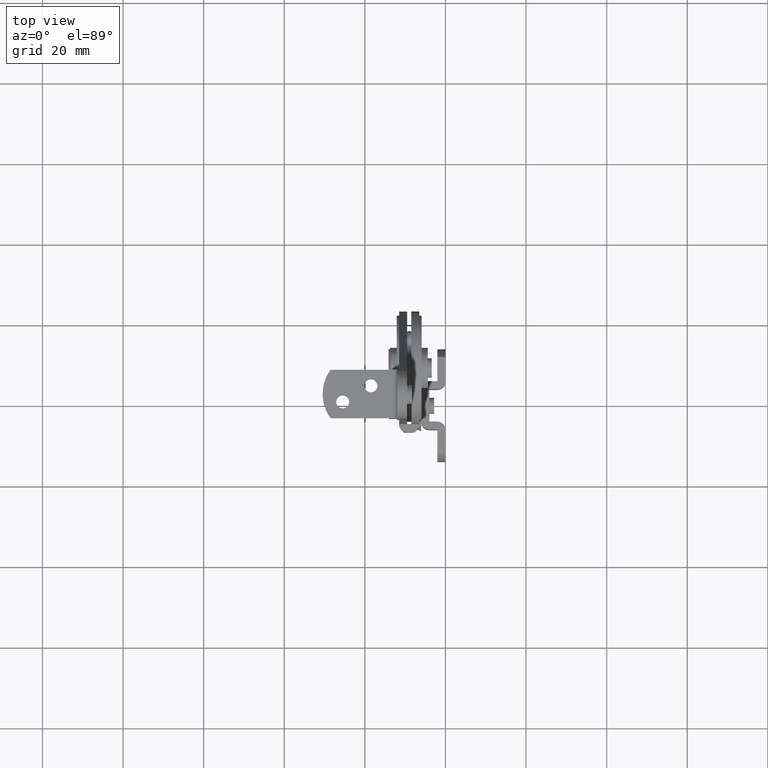
[diagram: clean part render]
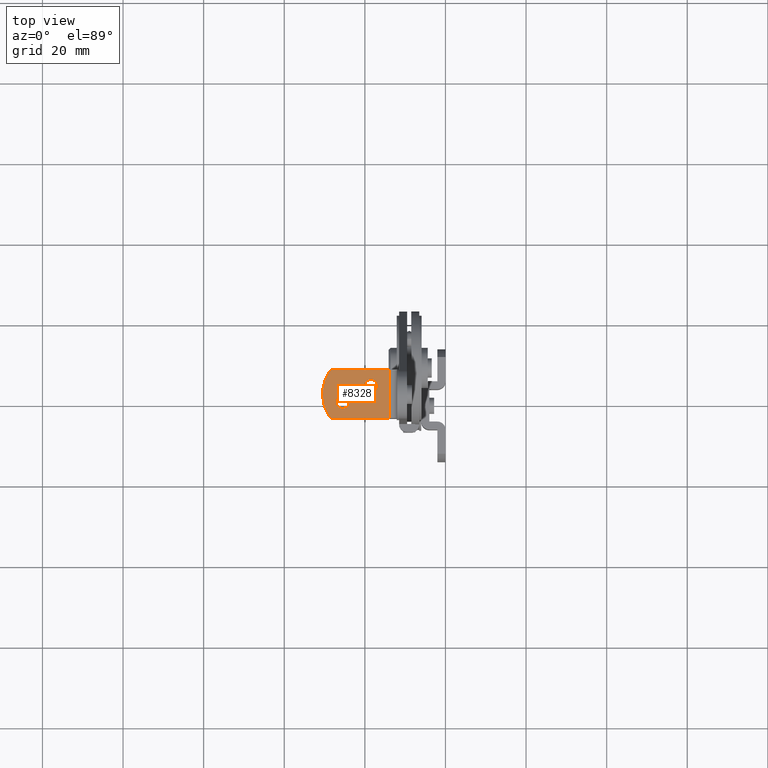
[diagram: same view with one face highlighted and labeled with its STEP entity id]
A machine part, top view. The second image highlights one B-rep face of the part: STEP entity #8328.
In plain terms, the highlighted face is a freeform B-spline surface patch.
Its self-contained STEP definition (entity closure, byte-faithful):
#7684=CARTESIAN_POINT('',(-18.402322334317180,0.402984316701834,88.999984000000083));
#7685=VERTEX_POINT('',#7684);
#7691=CARTESIAN_POINT('',(-16.899999999999999,2.0,88.999984000000097));
#7692=VERTEX_POINT('',#7691);
#7693=CARTESIAN_POINT('',(-16.899999999999999,2.0,88.999984000000097));
#7694=CARTESIAN_POINT('',(-16.899999999999999,0.494870296847094,88.999984000000083));
#7695=CARTESIAN_POINT('',(-18.402322334317176,0.402984316701834,88.999984000000083));
#7703=(BOUNDED_CURVE()B_SPLINE_CURVE(2,(#7693,#7694,#7695),.UNSPECIFIED.,.F.,.U.)B_SPLINE_CURVE_WITH_KNOTS((3,3),(0.500000000000000,0.739332961796144),.UNSPECIFIED.)CURVE()GEOMETRIC_REPRESENTATION_ITEM()RATIONAL_B_SPLINE_CURVE((1.0,0.719603993805482,0.976072040717715))REPRESENTATION_ITEM(''));
#7704=EDGE_CURVE('',#7692,#7685,#7703,.T.);
#7706=CARTESIAN_POINT('',(-18.688854776285950,3.588815248085043,88.999984000000097));
#7707=VERTEX_POINT('',#7706);
#7708=CARTESIAN_POINT('',(-18.688854776285950,3.588815248085043,88.999984000000097));
#7709=CARTESIAN_POINT('',(-18.594758591576038,3.599999999999999,88.999984000000097));
#7710=CARTESIAN_POINT('',(-18.500000000000000,3.600000000000000,88.999984000000097));
#7711=CARTESIAN_POINT('',(-16.899999999999991,3.600000000000000,88.999984000000083));
#7712=CARTESIAN_POINT('',(-16.899999999999999,2.0,88.999984000000097));
#7720=(BOUNDED_CURVE()B_SPLINE_CURVE(2,(#7708,#7709,#7710,#7711,#7712),.UNSPECIFIED.,.F.,.U.)B_SPLINE_CURVE_WITH_KNOTS((3,2,3),(0.229562473487649,0.250000000000000,0.500000000000000),.UNSPECIFIED.)CURVE()GEOMETRIC_REPRESENTATION_ITEM()RATIONAL_B_SPLINE_CURVE((0.956026754133013,0.976055948300849,1.0,0.707106781186548,1.0))REPRESENTATION_ITEM(''));
#7721=EDGE_CURVE('',#7707,#7692,#7720,.T.);
#7751=CARTESIAN_POINT('',(-20.100000000000001,2.0,88.999984000000097));
#7752=VERTEX_POINT('',#7751);
#7753=CARTESIAN_POINT('',(-20.100000000000001,2.0,88.999984000000097));
#7754=CARTESIAN_POINT('',(-20.099999999999998,3.421079241285128,88.999984000000083));
#7755=CARTESIAN_POINT('',(-18.688854776285950,3.588815248085043,88.999984000000097));
#7763=(BOUNDED_CURVE()B_SPLINE_CURVE(2,(#7753,#7754,#7755),.UNSPECIFIED.,.F.,.U.)B_SPLINE_CURVE_WITH_KNOTS((3,3),(0.0,0.229562473487648),.UNSPECIFIED.)CURVE()GEOMETRIC_REPRESENTATION_ITEM()RATIONAL_B_SPLINE_CURVE((1.0,0.731050832885699,0.956026754133013))REPRESENTATION_ITEM(''));
#7764=EDGE_CURVE('',#7752,#7707,#7763,.T.);
#7766=CARTESIAN_POINT('',(-18.402322334317176,0.402984316701835,88.999984000000083));
#7767=CARTESIAN_POINT('',(-18.451115576653304,0.400000000000000,88.999984000000097));
#7768=CARTESIAN_POINT('',(-18.500000000000000,0.400000000000000,88.999984000000097));
#7769=CARTESIAN_POINT('',(-20.100000000000005,0.400000000000000,88.999984000000083));
#7770=CARTESIAN_POINT('',(-20.100000000000001,2.0,88.999984000000097));
#7778=(BOUNDED_CURVE()B_SPLINE_CURVE(2,(#7766,#7767,#7768,#7769,#7770),.UNSPECIFIED.,.F.,.U.)B_SPLINE_CURVE_WITH_KNOTS((3,2,3),(0.739332961796145,0.750000000000000,1.0),.UNSPECIFIED.)CURVE()GEOMETRIC_REPRESENTATION_ITEM()RATIONAL_B_SPLINE_CURVE((0.976072040717717,0.987502787381067,1.0,0.707106781186548,1.0))REPRESENTATION_ITEM(''));
#7779=EDGE_CURVE('',#7685,#7752,#7778,.T.);
#8012=CARTESIAN_POINT('',(-25.402322334317180,-3.597015683298166,88.999984000000097));
#8013=VERTEX_POINT('',#8012);
#8019=CARTESIAN_POINT('',(-23.899999999999999,-2.0,88.999984000000097));
#8020=VERTEX_POINT('',#8019);
#8021=CARTESIAN_POINT('',(-23.899999999999999,-2.0,88.999984000000097));
#8022=CARTESIAN_POINT('',(-23.899999999999995,-3.505129703152907,88.999984000000083));
#8023=CARTESIAN_POINT('',(-25.402322334317176,-3.597015683298166,88.999984000000097));
#8031=(BOUNDED_CURVE()B_SPLINE_CURVE(2,(#8021,#8022,#8023),.UNSPECIFIED.,.F.,.U.)B_SPLINE_CURVE_WITH_KNOTS((3,3),(0.500000000000000,0.739332961796144),.UNSPECIFIED.)CURVE()GEOMETRIC_REPRESENTATION_ITEM()RATIONAL_B_SPLINE_CURVE((1.0,0.719603993805482,0.976072040717715))REPRESENTATION_ITEM(''));
#8032=EDGE_CURVE('',#8020,#8013,#8031,.T.);
#8034=CARTESIAN_POINT('',(-25.688854776285950,-0.411184751914957,88.999984000000097));
#8035=VERTEX_POINT('',#8034);
#8036=CARTESIAN_POINT('',(-25.688854776285943,-0.411184751914957,88.999984000000097));
#8037=CARTESIAN_POINT('',(-25.594758591576038,-0.400000000000000,88.999984000000097));
#8038=CARTESIAN_POINT('',(-25.500000000000000,-0.400000000000000,88.999984000000097));
#8039=CARTESIAN_POINT('',(-23.899999999999991,-0.400000000000000,88.999984000000083));
#8040=CARTESIAN_POINT('',(-23.899999999999999,-2.0,88.999984000000097));
#8048=(BOUNDED_CURVE()B_SPLINE_CURVE(2,(#8036,#8037,#8038,#8039,#8040),.UNSPECIFIED.,.F.,.U.)B_SPLINE_CURVE_WITH_KNOTS((3,2,3),(0.229562473487649,0.250000000000000,0.500000000000000),.UNSPECIFIED.)CURVE()GEOMETRIC_REPRESENTATION_ITEM()RATIONAL_B_SPLINE_CURVE((0.956026754133014,0.976055948300849,1.0,0.707106781186548,1.0))REPRESENTATION_ITEM(''));
#8049=EDGE_CURVE('',#8035,#8020,#8048,.T.);
#8079=CARTESIAN_POINT('',(-27.100000000000001,-2.0,88.999984000000097));
#8080=VERTEX_POINT('',#8079);
#8081=CARTESIAN_POINT('',(-27.100000000000001,-2.0,88.999984000000097));
#8082=CARTESIAN_POINT('',(-27.099999999999994,-0.578920758714870,88.999984000000069));
#8083=CARTESIAN_POINT('',(-25.688854776285943,-0.411184751914957,88.999984000000097));
#8091=(BOUNDED_CURVE()B_SPLINE_CURVE(2,(#8081,#8082,#8083),.UNSPECIFIED.,.F.,.U.)B_SPLINE_CURVE_WITH_KNOTS((3,3),(0.0,0.229562473487649),.UNSPECIFIED.)CURVE()GEOMETRIC_REPRESENTATION_ITEM()RATIONAL_B_SPLINE_CURVE((1.0,0.731050832885699,0.956026754133014))REPRESENTATION_ITEM(''));
#8092=EDGE_CURVE('',#8080,#8035,#8091,.T.);
#8094=CARTESIAN_POINT('',(-25.402322334317176,-3.597015683298166,88.999984000000097));
#8095=CARTESIAN_POINT('',(-25.451115576653304,-3.600000000000000,88.999984000000097));
#8096=CARTESIAN_POINT('',(-25.500000000000000,-3.600000000000000,88.999984000000097));
#8097=CARTESIAN_POINT('',(-27.100000000000001,-3.600000000000000,88.999984000000083));
#8098=CARTESIAN_POINT('',(-27.100000000000001,-2.0,88.999984000000097));
#8106=(BOUNDED_CURVE()B_SPLINE_CURVE(2,(#8094,#8095,#8096,#8097,#8098),.UNSPECIFIED.,.F.,.U.)B_SPLINE_CURVE_WITH_KNOTS((3,2,3),(0.739332961796144,0.750000000000000,1.0),.UNSPECIFIED.)CURVE()GEOMETRIC_REPRESENTATION_ITEM()RATIONAL_B_SPLINE_CURVE((0.976072040717716,0.987502787381067,1.0,0.707106781186548,1.0))REPRESENTATION_ITEM(''));
#8107=EDGE_CURVE('',#8013,#8080,#8106,.T.);
#8189=CARTESIAN_POINT('',(-28.500000000000000,-6.0,88.999984000000097));
#8190=VERTEX_POINT('',#8189);
#8191=CARTESIAN_POINT('',(-28.500000000000000,6.0,88.999984000000097));
#8192=VERTEX_POINT('',#8191);
#8193=CARTESIAN_POINT('',(-28.500000000000000,-6.0,88.999984000000097));
#8194=CARTESIAN_POINT('',(-33.0,-8.673617E-016,88.999984000000083));
#8195=CARTESIAN_POINT('',(-28.500000000000000,5.999999999999997,88.999984000000097));
#8203=(BOUNDED_CURVE()B_SPLINE_CURVE(2,(#8193,#8194,#8195),.UNSPECIFIED.,.F.,.U.)CURVE()GEOMETRIC_REPRESENTATION_ITEM()QUASI_UNIFORM_CURVE()RATIONAL_B_SPLINE_CURVE((1.0,0.800000000000000,1.0))REPRESENTATION_ITEM(''));
#8204=EDGE_CURVE('',#8190,#8192,#8203,.T.);
#8252=CARTESIAN_POINT('',(-14.000000211915101,-6.0,88.999984000000097));
#8253=VERTEX_POINT('',#8252);
#8274=CARTESIAN_POINT('',(-14.000000211915101,6.0,88.999984000000097));
#8275=VERTEX_POINT('',#8274);
#8289=CARTESIAN_POINT('',(-14.000000211915101,6.0,88.999984000000097));
#8290=CARTESIAN_POINT('',(-14.000000211915101,-6.0,88.999984000000097));
#8291=QUASI_UNIFORM_CURVE('',1,(#8289,#8290),.UNSPECIFIED.,.F.,.U.);
#8292=EDGE_CURVE('',#8275,#8253,#8291,.T.);
#8297=CARTESIAN_POINT('',(-31.324174957434462,-6.599399976741672,88.999984000000097));
#8298=CARTESIAN_POINT('',(-13.175824811915991,-6.599399976741672,88.999984000000097));
#8299=CARTESIAN_POINT('',(-31.324174957434462,6.599400298606754,88.999984000000097));
#8300=CARTESIAN_POINT('',(-13.175824811915991,6.599400298606754,88.999984000000097));
#8301=B_SPLINE_SURFACE_WITH_KNOTS('',1,1,((#8297,#8299),(#8298,#8300)),.UNSPECIFIED.,.F.,.F.,.U.,(2,2),(2,2),(0.0,18.148350145518471),(0.0,13.198800275348431),.UNSPECIFIED.);
#8302=CARTESIAN_POINT('',(-14.000000211915101,6.0,88.999984000000097));
#8303=CARTESIAN_POINT('',(-28.500000000000000,6.0,88.999984000000097));
#8304=QUASI_UNIFORM_CURVE('',1,(#8302,#8303),.UNSPECIFIED.,.F.,.U.);
#8305=EDGE_CURVE('',#8275,#8192,#8304,.T.);
#8306=ORIENTED_EDGE('',*,*,#8305,.T.);
#8307=ORIENTED_EDGE('',*,*,#8204,.F.);
#8308=CARTESIAN_POINT('',(-14.000000211915101,-6.0,88.999984000000097));
#8309=CARTESIAN_POINT('',(-28.500000000000000,-6.0,88.999984000000097));
#8310=QUASI_UNIFORM_CURVE('',1,(#8308,#8309),.UNSPECIFIED.,.F.,.U.);
#8311=EDGE_CURVE('',#8253,#8190,#8310,.T.);
#8312=ORIENTED_EDGE('',*,*,#8311,.F.);
#8313=ORIENTED_EDGE('',*,*,#8292,.F.);
#8314=EDGE_LOOP('',(#8306,#8307,#8312,#8313));
#8315=FACE_OUTER_BOUND('',#8314,.T.);
#8316=ORIENTED_EDGE('',*,*,#8032,.T.);
#8317=ORIENTED_EDGE('',*,*,#8107,.T.);
#8318=ORIENTED_EDGE('',*,*,#8092,.T.);
#8319=ORIENTED_EDGE('',*,*,#8049,.T.);
#8320=EDGE_LOOP('',(#8316,#8317,#8318,#8319));
#8321=FACE_BOUND('',#8320,.T.);
#8322=ORIENTED_EDGE('',*,*,#7704,.T.);
#8323=ORIENTED_EDGE('',*,*,#7779,.T.);
#8324=ORIENTED_EDGE('',*,*,#7764,.T.);
#8325=ORIENTED_EDGE('',*,*,#7721,.T.);
#8326=EDGE_LOOP('',(#8322,#8323,#8324,#8325));
#8327=FACE_BOUND('',#8326,.T.);
#8328=ADVANCED_FACE('',(#8315,#8321,#8327),#8301,.T.);